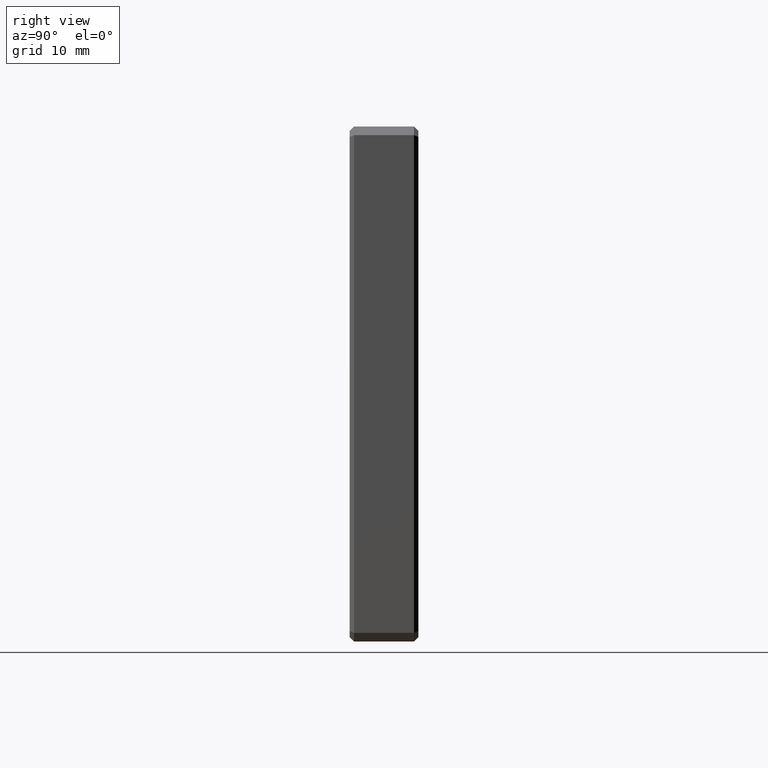
[diagram: clean part render]
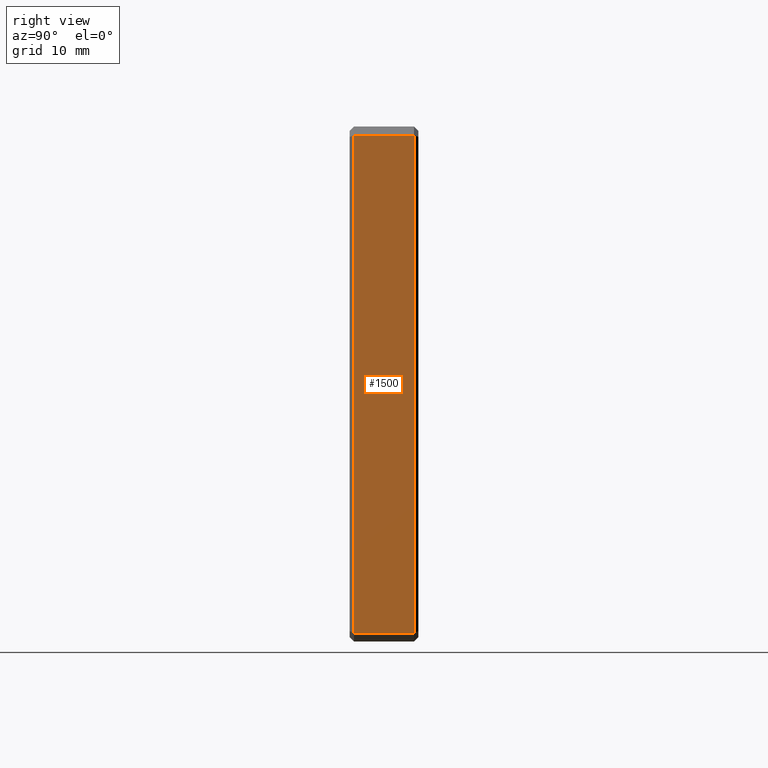
[diagram: same view with one face highlighted and labeled with its STEP entity id]
A machine part, right view. The second image highlights one B-rep face of the part: STEP entity #1500.
In plain terms, the highlighted planar face has unit normal (-1, 0, 0).
Its self-contained STEP definition (entity closure, byte-faithful):
#36 = ORIENTED_EDGE ( 'NONE', *, *, #758, .T. ) ;
#46 = CARTESIAN_POINT ( 'NONE',  ( 30.00000000000000000, 7.499999999999992895, -28.99999999999999289 ) ) ;
#79 = VERTEX_POINT ( 'NONE', #1441 ) ;
#255 = CARTESIAN_POINT ( 'NONE',  ( 30.00000000000000000, 8.000000000000000000, -28.99999999999999289 ) ) ;
#268 = VECTOR ( 'NONE', #724, 1000.000000000000000 ) ;
#304 = DIRECTION ( 'NONE',  ( 2.392722035830078972E-16, 0.000000000000000000, 1.000000000000000000 ) ) ;
#367 = LINE ( 'NONE', #255, #268 ) ;
#385 = CARTESIAN_POINT ( 'NONE',  ( 30.00000000000001421, 0.5000000000000004441, 29.00000000000000000 ) ) ;
#471 = VECTOR ( 'NONE', #598, 1000.000000000000000 ) ;
#492 = LINE ( 'NONE', #46, #471 ) ;
#495 = VECTOR ( 'NONE', #591, 1000.000000000000000 ) ;
#523 = DIRECTION ( 'NONE',  ( -1.000000000000000000, 0.000000000000000000, 2.392722035830078972E-16 ) ) ;
#559 = CARTESIAN_POINT ( 'NONE',  ( 30.00000000000000000, 0.5000000000000004441, -28.29289321881342545 ) ) ;
#591 = DIRECTION ( 'NONE',  ( -2.392722035830078972E-16, 0.000000000000000000, -1.000000000000000000 ) ) ;
#592 = EDGE_CURVE ( 'NONE', #670, #79, #492, .T. ) ;
#594 = ORIENTED_EDGE ( 'NONE', *, *, #1299, .T. ) ;
#598 = DIRECTION ( 'NONE',  ( 2.392722035830078972E-16, 0.000000000000000000, 1.000000000000000000 ) ) ;
#624 = AXIS2_PLACEMENT_3D ( 'NONE', #1359, #523, #304 ) ;
#659 = PLANE ( 'NONE',  #624 ) ;
#670 = VERTEX_POINT ( 'NONE', #1164 ) ;
#724 = DIRECTION ( 'NONE',  ( -0.000000000000000000, -1.000000000000000000, -0.000000000000000000 ) ) ;
#758 = EDGE_CURVE ( 'NONE', #846, #1461, #1027, .T. ) ;
#778 = CARTESIAN_POINT ( 'NONE',  ( 30.00000000000000000, 0.5000000000000073275, -28.99999999999999289 ) ) ;
#846 = VERTEX_POINT ( 'NONE', #385 ) ;
#888 = EDGE_LOOP ( 'NONE', ( #594, #36, #1335, #1358 ) ) ;
#889 = FACE_OUTER_BOUND ( 'NONE', #888, .T. ) ;
#949 = EDGE_CURVE ( 'NONE', #670, #1461, #367, .T. ) ;
#966 = DIRECTION ( 'NONE',  ( -0.000000000000000000, -1.000000000000000000, -0.000000000000000000 ) ) ;
#972 = LINE ( 'NONE', #1444, #1225 ) ;
#1027 = LINE ( 'NONE', #559, #495 ) ;
#1164 = CARTESIAN_POINT ( 'NONE',  ( 30.00000000000000000, 7.500000000000013323, -28.99999999999999289 ) ) ;
#1225 = VECTOR ( 'NONE', #966, 1000.000000000000000 ) ;
#1299 = EDGE_CURVE ( 'NONE', #79, #846, #972, .T. ) ;
#1335 = ORIENTED_EDGE ( 'NONE', *, *, #949, .F. ) ;
#1358 = ORIENTED_EDGE ( 'NONE', *, *, #592, .T. ) ;
#1359 = CARTESIAN_POINT ( 'NONE',  ( 30.00000000000000000, 8.000000000000000000, -28.99999999999999289 ) ) ;
#1441 = CARTESIAN_POINT ( 'NONE',  ( 30.00000000000001421, 7.499999999999992895, 29.00000000000000000 ) ) ;
#1444 = CARTESIAN_POINT ( 'NONE',  ( 30.00000000000001421, 8.000000000000000000, 29.00000000000000000 ) ) ;
#1461 = VERTEX_POINT ( 'NONE', #778 ) ;
#1500 = ADVANCED_FACE ( 'NONE', ( #889 ), #659, .F. ) ;